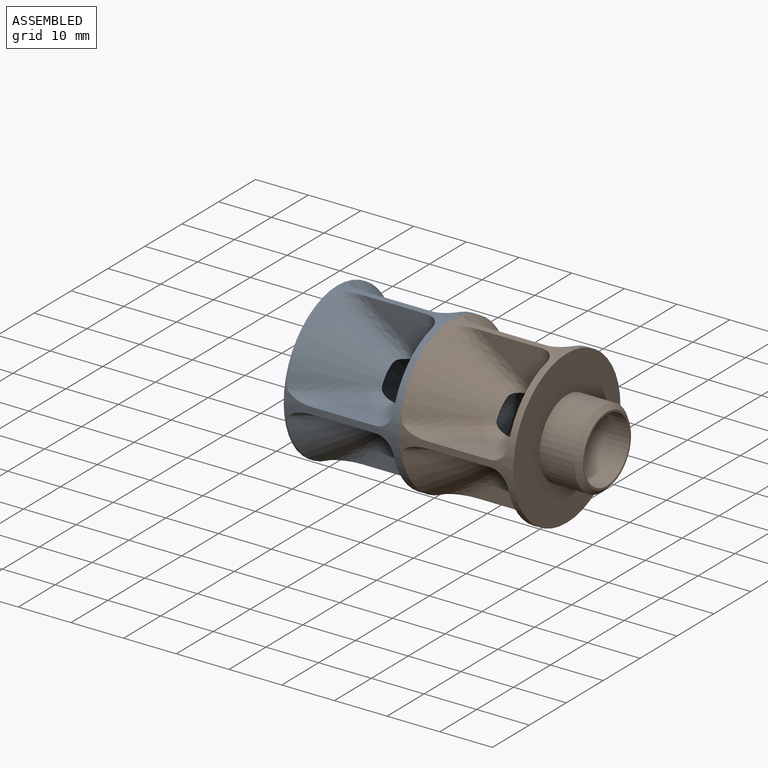
[diagram: assembled view]
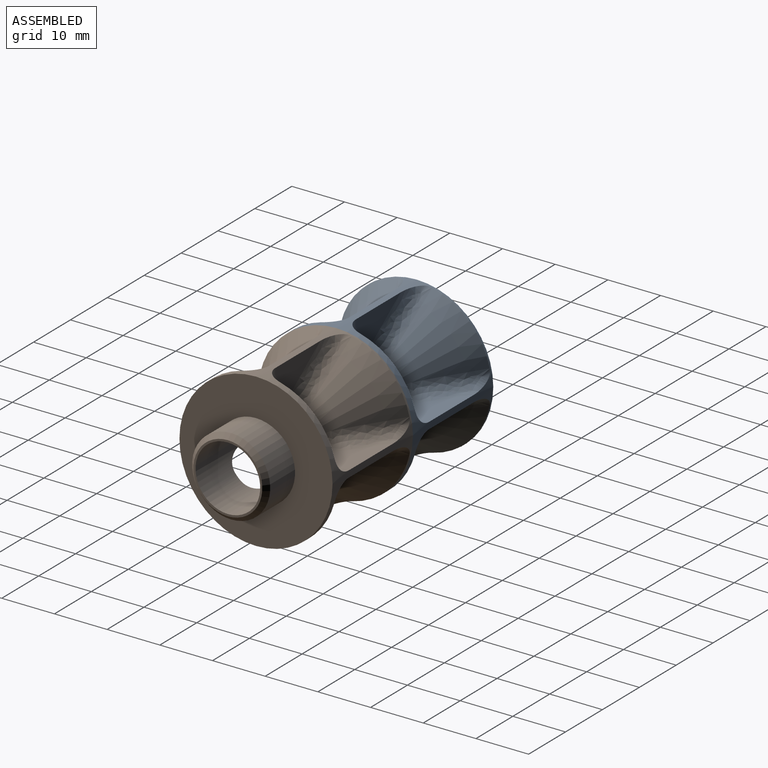
[diagram: assembled view, second angle]
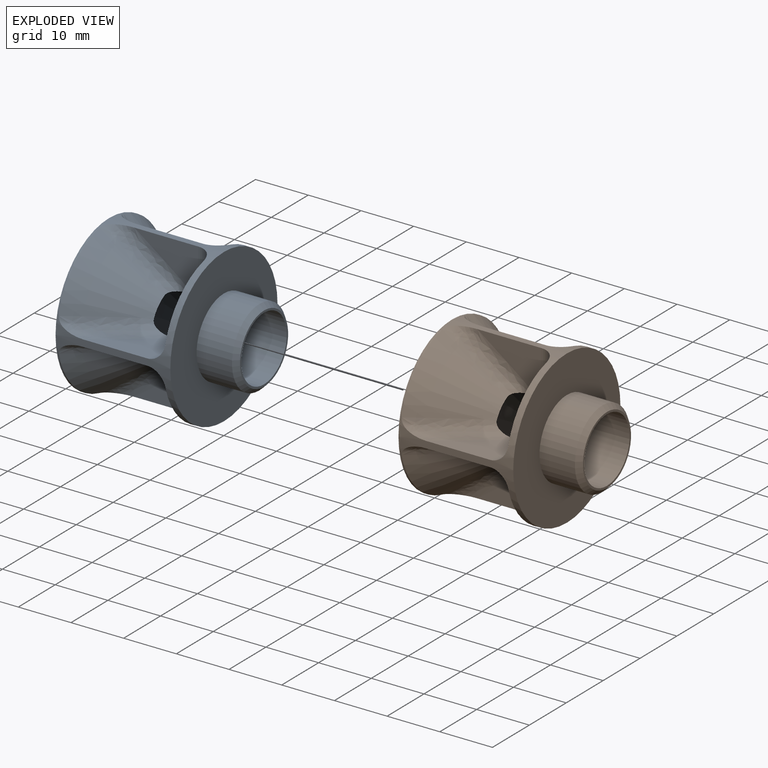
[diagram: exploded view]
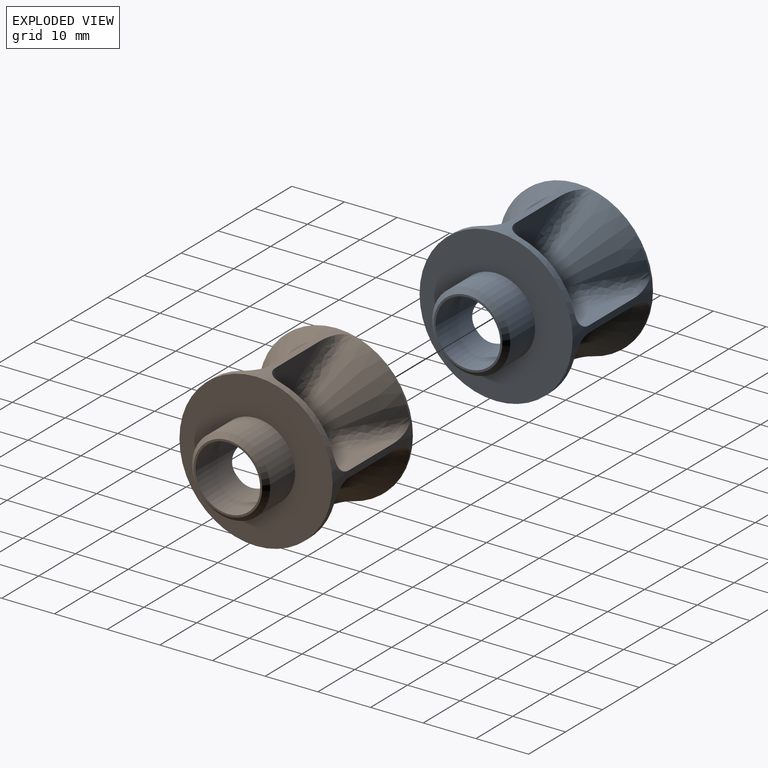
[diagram: exploded view, second angle]
ASSEMBLY  parts=2 mates=2
PART A: 40 faces, bbox 32.6x36.8x38.5 mm
  f0: plane 10.21x10.21mm, normal (-1,0,0), area 70.3mm2, adj f4,f22,f23,f24
  f1: plane 10.21x10.21mm, normal (-1,0,0), area 70.3mm2, adj f4,f22,f31,f32
  f2: plane 10.21x10.21mm, normal (-1,0,0), area 70.3mm2, adj f4,f22,f35,f36
  f3: plane 10.21x10.21mm, normal (-1,0,0), area 70.3mm2, adj f4,f22,f27,f29
  f4: cylinder r=6.15mm len=19.25mm, axis (1,0,0), area 502.5mm2, adj f0,f1,f2,f3,f5,f8,f9,f10
  f5: plane 13.06x13.06mm, normal (1,0,0), area 15.2mm2, adj f4,f39
  f6: cylinder r=7.42mm len=14.83mm, axis (1,0,0), area 313.7mm2, adj f7,f39
  f7: plane 29.06x29.06mm, normal (1,0,0), area 490.3mm2, adj f6,f22
  f8: plane 12.09x8.4mm, normal (0,-1,0), area 53.8mm2, adj f4,f22,f35,f37
  f9: plane 12.09x8.4mm, normal (0,0,-1), area 53.8mm2, adj f4,f22,f36,f38
  f10: plane 12.09x8.4mm, normal (0,0,1), area 53.8mm2, adj f4,f22,f31,f33
  f11: plane 12.09x8.4mm, normal (0,-1,0), area 53.8mm2, adj f4,f22,f32,f34
  f12: plane 12.09x8.4mm, normal (0,1,0), area 53.8mm2, adj f4,f22,f29,f30
  f13: plane 12.09x8.4mm, normal (0,0,1), area 53.8mm2, adj f4,f22,f27,f28
  f14: plane 12.09x8.4mm, normal (0,0,-1), area 53.8mm2, adj f4,f22,f23,f25
  f15: plane 12.09x8.4mm, normal (0,1,0), area 53.8mm2, adj f4,f22,f24,f26
  f16: cone r=13.26mm half-angle=35deg, axis (-1,0,0), area 755.9mm2, adj f4,f17
  f17: plane 29.06x29.06mm, normal (-1,0,0), area 110.9mm2, adj f16,f22
  f18: cone r=14.53mm half-angle=35deg, axis (-1,0,0), area 140mm2, adj f4,f22,f28,f30
  f19: cone r=14.53mm half-angle=35deg, axis (-1,0,0), area 140mm2, adj f4,f22,f33,f34
  f20: cone r=14.53mm half-angle=35deg, axis (-1,0,0), area 140mm2, adj f4,f22,f37,f38
  f21: cone r=14.53mm half-angle=35deg, axis (-1,0,0), area 140mm2, adj f4,f22,f25,f26
  f22: cylinder r=14.53mm len=29.06mm, axis (1,0,0), area 346.5mm2, adj f0,f1,f2,f3,f7,f8,f9,f10
  f23: cylinder r=3.17mm len=9.69mm, axis (0,1,0), area 43.9mm2, adj f0,f4,f14,f22
  f24: cylinder r=3.17mm len=9.69mm, axis (0,0,1), area 43.9mm2, adj f0,f4,f15,f22
  f25: bspline ~20.75x16.23mm, area 59mm2, adj f4,f14,f21,f22
  f26: bspline ~17.59x13.95mm, area 59mm2, adj f4,f15,f21,f22
  f27: cylinder r=3.17mm len=9.69mm, axis (0,-1,0), area 43.9mm2, adj f3,f4,f13,f22
  f28: bspline ~20.75x16.23mm, area 59mm2, adj f4,f13,f18,f22
  f29: cylinder r=3.17mm len=9.69mm, axis (0,0,1), area 43.9mm2, adj f3,f4,f12,f22
  f30: bspline ~20.75x16.23mm, area 59mm2, adj f4,f12,f18,f22
  f31: cylinder r=3.17mm len=9.69mm, axis (0,-1,0), area 43.9mm2, adj f1,f4,f10,f22
  f32: cylinder r=3.17mm len=9.69mm, axis (0,0,-1), area 43.9mm2, adj f1,f4,f11,f22
  f33: bspline ~17.59x13.95mm, area 59mm2, adj f4,f10,f19,f22
  f34: bspline ~17.59x13.95mm, area 59mm2, adj f4,f11,f19,f22
  f35: cylinder r=3.17mm len=9.69mm, axis (0,0,-1), area 43.9mm2, adj f2,f4,f8,f22
  f36: cylinder r=3.17mm len=9.69mm, axis (0,1,0), area 43.9mm2, adj f2,f4,f9,f22
  f37: bspline ~20.75x16.23mm, area 59mm2, adj f4,f8,f20,f22
  f38: bspline ~17.59x13.95mm, area 59mm2, adj f4,f9,f20,f22
  f39: cone r=6.53mm half-angle=45deg, axis (-1,0,0), area 55.1mm2, adj f5,f6
PART B: same geometry as A
PLACE A t=(-20.26,12.56,-10.52)mm
PLACE B t=(1.52,12.56,-10.52)mm
MATE cylindrical A.f4 <-> B.f4  axis (1,0,0) through (9.14,12.56,-10.52)mm
MATE planar A.f4 <-> B.f4  axis (1,0,0) through (1.52,12.56,-10.52)mm
